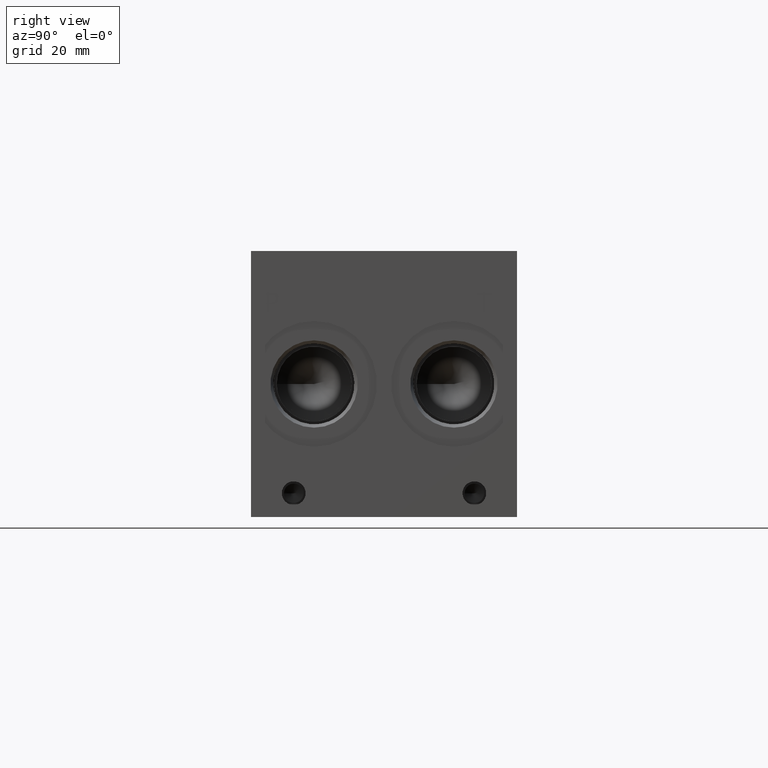
[diagram: clean part render]
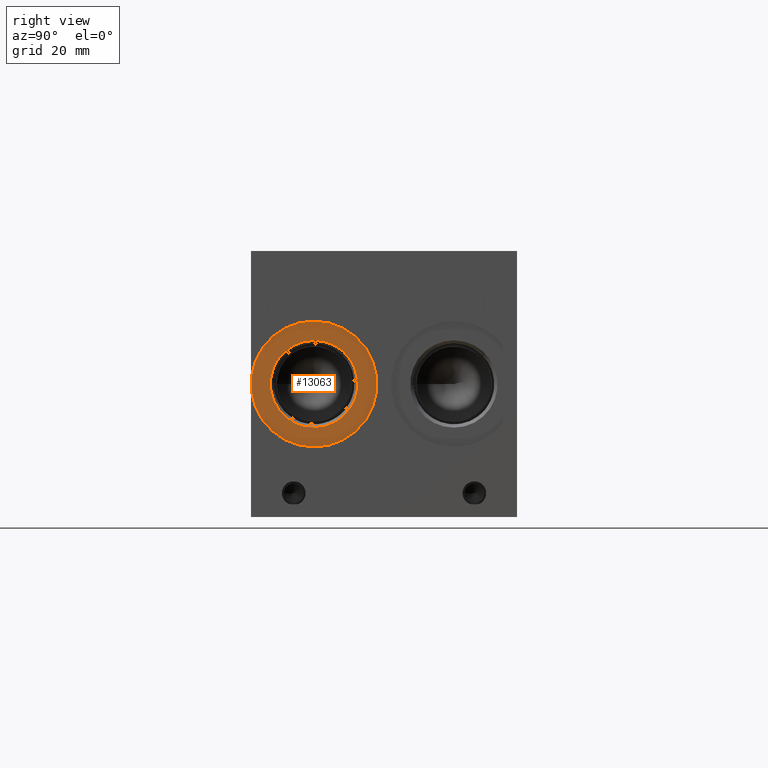
[diagram: same view with one face highlighted and labeled with its STEP entity id]
A machine part, right view. The second image highlights one B-rep face of the part: STEP entity #13063.
In plain terms, the highlighted planar face has unit normal (-1, 0, 0).
Its self-contained STEP definition (entity closure, byte-faithful):
#238=CIRCLE('',#13664,21.0185);
#239=CIRCLE('',#13665,21.0185);
#240=CIRCLE('',#13667,14.5923);
#241=CIRCLE('',#13668,14.5923);
#539=FACE_BOUND('',#2386,.T.);
#1639=FACE_OUTER_BOUND('',#2385,.T.);
#2385=EDGE_LOOP('',(#10921,#10922));
#2386=EDGE_LOOP('',(#10923,#10924));
#5915=VERTEX_POINT('',#22153);
#5916=VERTEX_POINT('',#22155);
#5917=VERTEX_POINT('',#22159);
#5918=VERTEX_POINT('',#22160);
#7657=EDGE_CURVE('',#5915,#5916,#238,.T.);
#7658=EDGE_CURVE('',#5916,#5915,#239,.T.);
#7659=EDGE_CURVE('',#5917,#5918,#240,.T.);
#7660=EDGE_CURVE('',#5918,#5917,#241,.T.);
#10921=ORIENTED_EDGE('',*,*,#7658,.F.);
#10922=ORIENTED_EDGE('',*,*,#7657,.F.);
#10923=ORIENTED_EDGE('',*,*,#7659,.T.);
#10924=ORIENTED_EDGE('',*,*,#7660,.T.);
#12014=PLANE('',#13666);
#13063=ADVANCED_FACE('',(#1639,#539),#12014,.F.);
#13664=AXIS2_PLACEMENT_3D('',#22156,#15974,#15975);
#13665=AXIS2_PLACEMENT_3D('',#22157,#15976,#15977);
#13666=AXIS2_PLACEMENT_3D('',#22158,#15978,#15979);
#13667=AXIS2_PLACEMENT_3D('',#22161,#15980,#15981);
#13668=AXIS2_PLACEMENT_3D('',#22162,#15982,#15983);
#15974=DIRECTION('center_axis',(-1.,0.,0.));
#15975=DIRECTION('ref_axis',(0.,0.,1.));
#15976=DIRECTION('center_axis',(-1.,0.,0.));
#15977=DIRECTION('ref_axis',(0.,0.,1.));
#15978=DIRECTION('center_axis',(-1.,0.,0.));
#15979=DIRECTION('ref_axis',(0.,0.,1.));
#15980=DIRECTION('center_axis',(-1.,0.,0.));
#15981=DIRECTION('ref_axis',(0.,0.,1.));
#15982=DIRECTION('center_axis',(-1.,0.,0.));
#15983=DIRECTION('ref_axis',(0.,0.,1.));
#22153=CARTESIAN_POINT('',(208.7626,21.082,65.4685));
#22155=CARTESIAN_POINT('',(208.7626,21.082,23.4315));
#22156=CARTESIAN_POINT('Origin',(208.7626,21.082,44.45));
#22157=CARTESIAN_POINT('Origin',(208.7626,21.082,44.45));
#22158=CARTESIAN_POINT('Origin',(208.7626,21.082,29.8577));
#22159=CARTESIAN_POINT('',(208.7626,21.082,29.8577));
#22160=CARTESIAN_POINT('',(208.7626,21.082,59.0423));
#22161=CARTESIAN_POINT('Origin',(208.7626,21.082,44.45));
#22162=CARTESIAN_POINT('Origin',(208.7626,21.082,44.45));